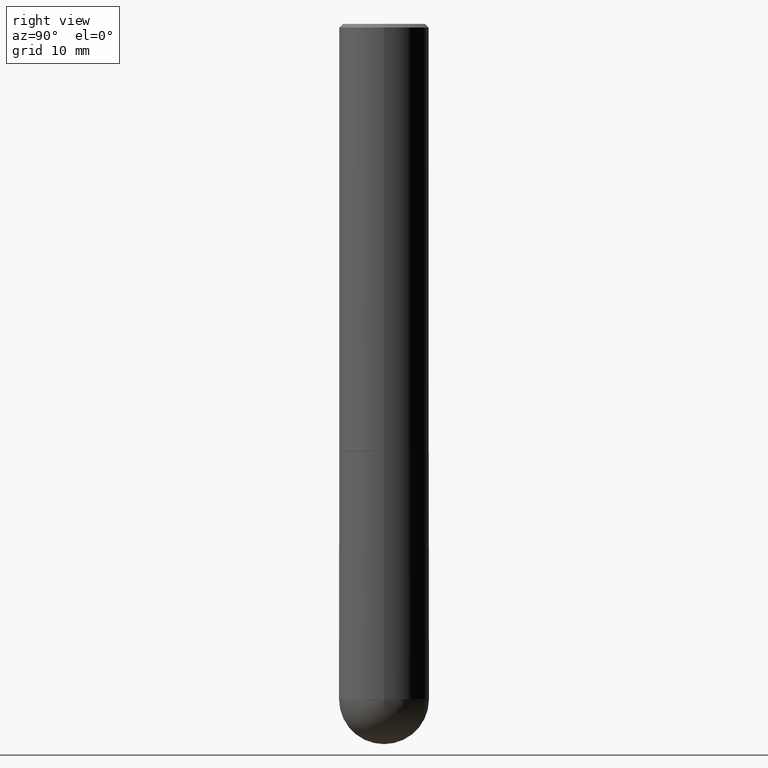
[diagram: clean part render]
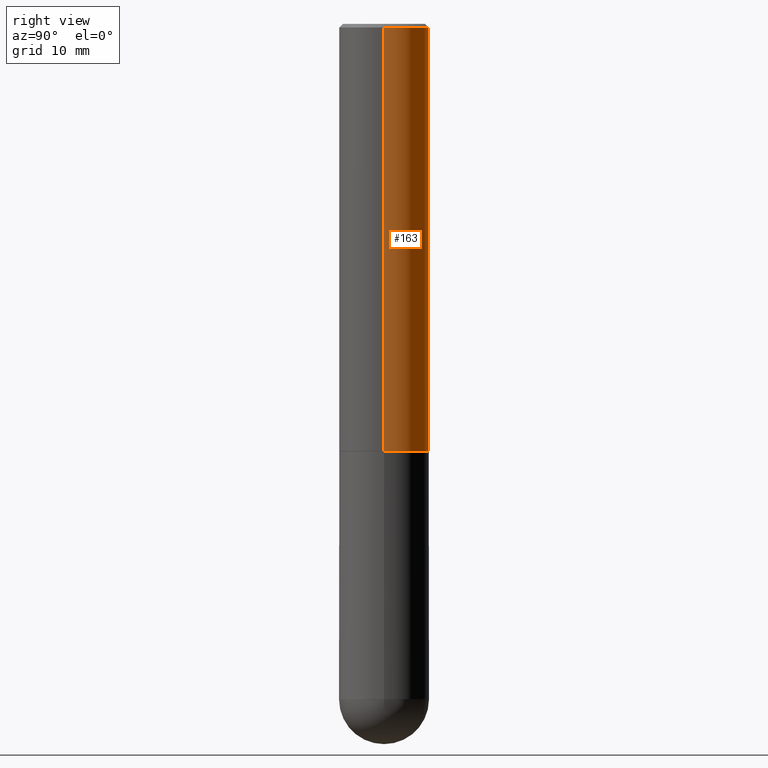
[diagram: same view with one face highlighted and labeled with its STEP entity id]
A machine part, right view. The second image highlights one B-rep face of the part: STEP entity #163.
In plain terms, the highlighted cylindrical surface (partial cylindrical patch) has radius 6.35 mm, axis along (-0, 0, 1).
Its self-contained STEP definition (entity closure, byte-faithful):
#8 = VECTOR ( 'NONE', #185, 39.37007874015748143 ) ;
#50 = VERTEX_POINT ( 'NONE', #335 ) ;
#55 = CARTESIAN_POINT ( 'NONE',  ( -0.2500000000000000000, 1.675911042644703577E-15, -0.02000000000000005593 ) ) ;
#76 = VERTEX_POINT ( 'NONE', #55 ) ;
#125 = DIRECTION ( 'NONE',  ( -2.445468806185136597E-29, 3.491481338843145583E-15, 1.000000000000000000 ) ) ;
#129 = CARTESIAN_POINT ( 'NONE',  ( 5.805542945883513814E-29, -8.288776698413627111E-15, -2.373999999999999666 ) ) ;
#131 = DIRECTION ( 'NONE',  ( 1.000000000000000000, -6.982962677686267499E-15, 4.876176775795936353E-29 ) ) ;
#132 = DIRECTION ( 'NONE',  ( 1.000000000000000000, -6.982962677686266711E-15, 0.000000000000000000 ) ) ;
#139 = ORIENTED_EDGE ( 'NONE', *, *, #173, .T. ) ;
#140 = EDGE_LOOP ( 'NONE', ( #139, #146, #172, #361 ) ) ;
#146 = ORIENTED_EDGE ( 'NONE', *, *, #329, .T. ) ;
#151 = CYLINDRICAL_SURFACE ( 'NONE', #393, 0.2500000000000001110 ) ;
#156 = LINE ( 'NONE', #268, #8 ) ;
#160 = DIRECTION ( 'NONE',  ( -2.445468806185136597E-29, 3.491481338843145583E-15, 1.000000000000000000 ) ) ;
#163 = ADVANCED_FACE ( 'NONE', ( #381 ), #151, .T. ) ;
#172 = ORIENTED_EDGE ( 'NONE', *, *, #397, .F. ) ;
#173 = EDGE_CURVE ( 'NONE', #50, #399, #301, .T. ) ;
#184 = CARTESIAN_POINT ( 'NONE',  ( 0.000000000000000000, 0.000000000000000000, 0.000000000000000000 ) ) ;
#185 = DIRECTION ( 'NONE',  ( -2.445468806185136877E-29, 3.491481338843145188E-15, 1.000000000000000000 ) ) ;
#187 = DIRECTION ( 'NONE',  ( -2.445468806185136597E-29, 3.491481338843145583E-15, 1.000000000000000000 ) ) ;
#214 = DIRECTION ( 'NONE',  ( -2.445468806185136877E-29, 3.491481338843145188E-15, 1.000000000000000000 ) ) ;
#229 = AXIS2_PLACEMENT_3D ( 'NONE', #129, #187, #273 ) ;
#241 = AXIS2_PLACEMENT_3D ( 'NONE', #322, #160, #132 ) ;
#268 = CARTESIAN_POINT ( 'NONE',  ( -0.2500000000000001110, 1.776356839400251254E-15, -1.229733772563727146E-29 ) ) ;
#273 = DIRECTION ( 'NONE',  ( 1.000000000000000000, -6.982962677686264344E-15, 0.000000000000000000 ) ) ;
#284 = CARTESIAN_POINT ( 'NONE',  ( -0.2500000000000002220, -2.402946323194990795E-15, -2.373999999999999666 ) ) ;
#285 = VERTEX_POINT ( 'NONE', #374 ) ;
#301 = CIRCLE ( 'NONE', #229, 0.2500000000000002220 ) ;
#313 = CARTESIAN_POINT ( 'NONE',  ( 0.2500000000000001110, -1.745740669421567664E-15, 1.219044193948984649E-29 ) ) ;
#315 = LINE ( 'NONE', #313, #324 ) ;
#322 = CARTESIAN_POINT ( 'NONE',  ( 4.890937612370287172E-31, -6.982962677686310098E-17, -0.02000000000000005593 ) ) ;
#324 = VECTOR ( 'NONE', #214, 39.37007874015748143 ) ;
#329 = EDGE_CURVE ( 'NONE', #399, #76, #156, .T. ) ;
#331 = CIRCLE ( 'NONE', #241, 0.2500000000000000000 ) ;
#335 = CARTESIAN_POINT ( 'NONE',  ( 0.2500000000000002220, -1.003451736783519537E-14, -2.373999999999999666 ) ) ;
#337 = EDGE_CURVE ( 'NONE', #50, #285, #315, .T. ) ;
#361 = ORIENTED_EDGE ( 'NONE', *, *, #337, .F. ) ;
#374 = CARTESIAN_POINT ( 'NONE',  ( 0.2500000000000000000, -1.784954126219746189E-15, -0.02000000000000005593 ) ) ;
#381 = FACE_OUTER_BOUND ( 'NONE', #140, .T. ) ;
#393 = AXIS2_PLACEMENT_3D ( 'NONE', #184, #125, #131 ) ;
#397 = EDGE_CURVE ( 'NONE', #285, #76, #331, .T. ) ;
#399 = VERTEX_POINT ( 'NONE', #284 ) ;